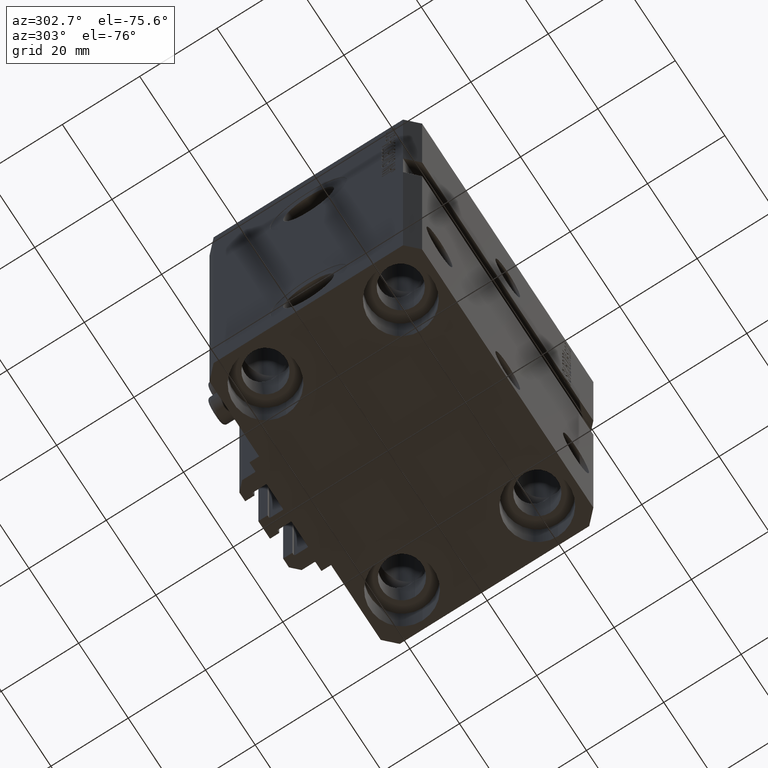
[diagram: clean part render]
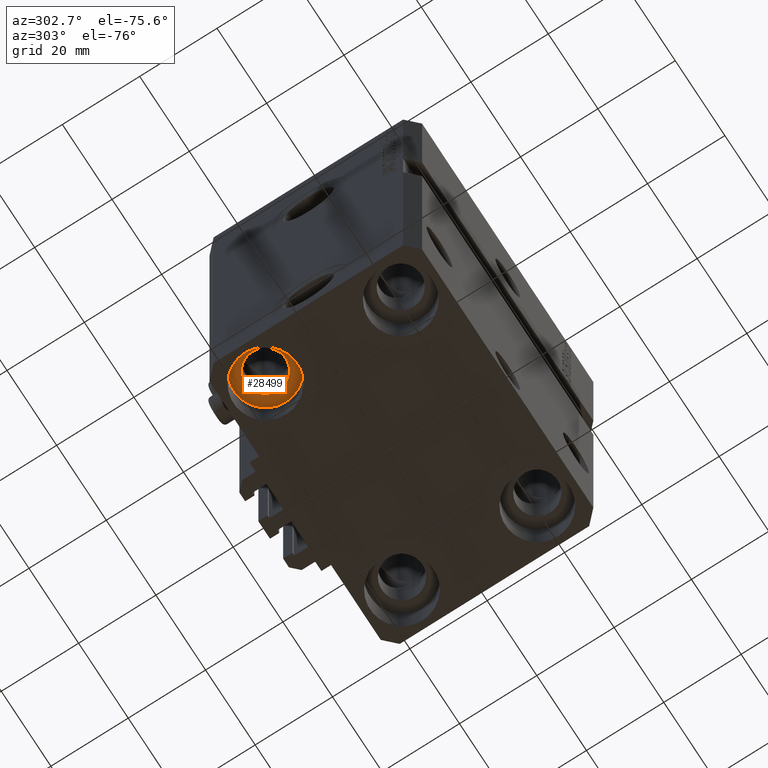
[diagram: same view with one face highlighted and labeled with its STEP entity id]
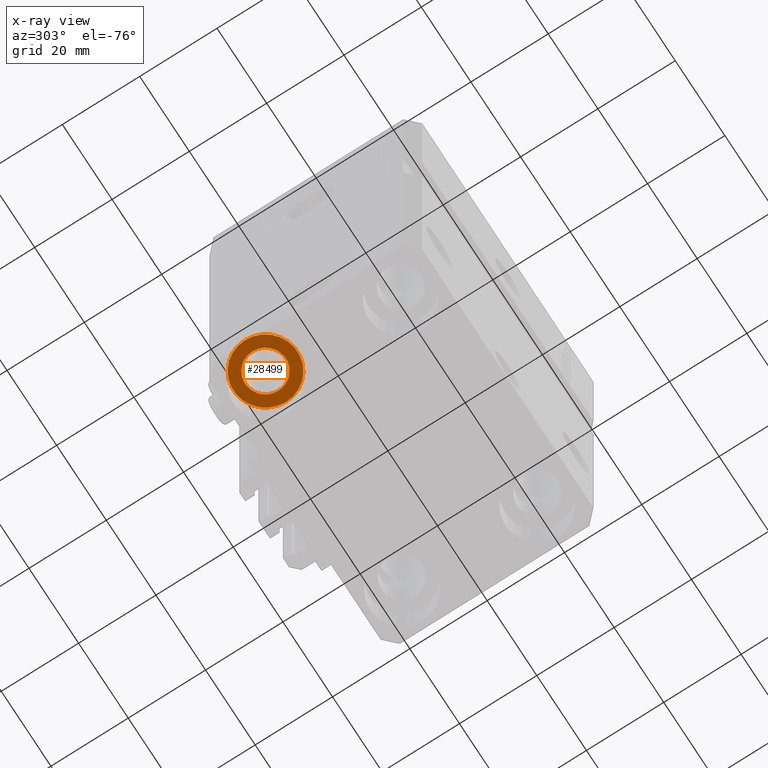
[diagram: x-ray of the same camera — body ghosted, the highlighted face saturated]
A machine part, auxiliary view. The second image highlights one B-rep face of the part: STEP entity #28499.
The next image is the same camera in x-ray: the body ghosted, the highlighted face saturated — about 0% of this face is hidden behind the body in this view.
In plain terms, the highlighted planar face has unit normal (0, 0, -1).
Its self-contained STEP definition (entity closure, byte-faithful):
#239 = CARTESIAN_POINT ( 'NONE',  ( -27.50000000000000355, 17.50000000000000000, -99.00000000000000000 ) ) ;
#1449 = DIRECTION ( 'NONE',  ( -1.000000000000000000, 0.000000000000000000, 0.000000000000000000 ) ) ;
#2641 = DIRECTION ( 'NONE',  ( 1.000000000000000000, 0.000000000000000000, 0.000000000000000000 ) ) ;
#3113 = DIRECTION ( 'NONE',  ( -0.000000000000000000, -0.000000000000000000, 1.000000000000000000 ) ) ;
#4422 = DIRECTION ( 'NONE',  ( 0.000000000000000000, 0.000000000000000000, -1.000000000000000000 ) ) ;
#5844 = CIRCLE ( 'NONE', #36399, 8.250000000000000000 ) ;
#6969 = PLANE ( 'NONE',  #9838 ) ;
#9838 = AXIS2_PLACEMENT_3D ( 'NONE', #239, #43604, #28309 ) ;
#11307 = VERTEX_POINT ( 'NONE', #25142 ) ;
#12798 = CARTESIAN_POINT ( 'NONE',  ( -27.50000000000000355, 17.50000000000000000, -99.00000000000000000 ) ) ;
#14639 = FACE_BOUND ( 'NONE', #47291, .T. ) ;
#15200 = AXIS2_PLACEMENT_3D ( 'NONE', #12798, #38406, #34823 ) ;
#18474 = FACE_OUTER_BOUND ( 'NONE', #36495, .T. ) ;
#18566 = CARTESIAN_POINT ( 'NONE',  ( -22.25000000000000355, 17.50000000000000000, -99.00000000000000000 ) ) ;
#18955 = CARTESIAN_POINT ( 'NONE',  ( -27.50000000000000355, 17.50000000000000000, -99.00000000000000000 ) ) ;
#19572 = AXIS2_PLACEMENT_3D ( 'NONE', #18955, #33551, #1449 ) ;
#20932 = ORIENTED_EDGE ( 'NONE', *, *, #41347, .F. ) ;
#21698 = DIRECTION ( 'NONE',  ( -1.000000000000000000, 0.000000000000000000, 0.000000000000000000 ) ) ;
#21704 = CARTESIAN_POINT ( 'NONE',  ( -19.25000000000000355, 17.50000000000000000, -99.00000000000000000 ) ) ;
#24210 = CARTESIAN_POINT ( 'NONE',  ( -27.50000000000000355, 17.50000000000000000, -99.00000000000000000 ) ) ;
#25142 = CARTESIAN_POINT ( 'NONE',  ( -32.75000000000000000, 17.50000000000000000, -99.00000000000000000 ) ) ;
#26103 = VERTEX_POINT ( 'NONE', #18566 ) ;
#27744 = VERTEX_POINT ( 'NONE', #34226 ) ;
#28176 = EDGE_CURVE ( 'NONE', #27744, #40320, #46529, .T. ) ;
#28309 = DIRECTION ( 'NONE',  ( 1.000000000000000000, 0.000000000000000000, 0.000000000000000000 ) ) ;
#28499 = ADVANCED_FACE ( 'NONE', ( #14639, #18474 ), #6969, .T. ) ;
#30942 = AXIS2_PLACEMENT_3D ( 'NONE', #40816, #4422, #21698 ) ;
#31814 = CIRCLE ( 'NONE', #19572, 5.249999999999997335 ) ;
#32147 = ORIENTED_EDGE ( 'NONE', *, *, #28176, .F. ) ;
#33551 = DIRECTION ( 'NONE',  ( 0.000000000000000000, 0.000000000000000000, -1.000000000000000000 ) ) ;
#34226 = CARTESIAN_POINT ( 'NONE',  ( -35.75000000000000711, 17.50000000000000000, -99.00000000000000000 ) ) ;
#34823 = DIRECTION ( 'NONE',  ( 1.000000000000000000, 0.000000000000000000, 0.000000000000000000 ) ) ;
#36399 = AXIS2_PLACEMENT_3D ( 'NONE', #24210, #3113, #2641 ) ;
#36495 = EDGE_LOOP ( 'NONE', ( #32147, #41986 ) ) ;
#38406 = DIRECTION ( 'NONE',  ( -0.000000000000000000, -0.000000000000000000, 1.000000000000000000 ) ) ;
#38562 = CIRCLE ( 'NONE', #30942, 5.249999999999997335 ) ;
#40320 = VERTEX_POINT ( 'NONE', #21704 ) ;
#40816 = CARTESIAN_POINT ( 'NONE',  ( -27.50000000000000355, 17.50000000000000000, -99.00000000000000000 ) ) ;
#41347 = EDGE_CURVE ( 'NONE', #26103, #11307, #38562, .T. ) ;
#41986 = ORIENTED_EDGE ( 'NONE', *, *, #45446, .F. ) ;
#42913 = ORIENTED_EDGE ( 'NONE', *, *, #44474, .F. ) ;
#43604 = DIRECTION ( 'NONE',  ( 0.000000000000000000, 0.000000000000000000, -1.000000000000000000 ) ) ;
#44474 = EDGE_CURVE ( 'NONE', #11307, #26103, #31814, .T. ) ;
#45446 = EDGE_CURVE ( 'NONE', #40320, #27744, #5844, .T. ) ;
#46529 = CIRCLE ( 'NONE', #15200, 8.250000000000000000 ) ;
#47291 = EDGE_LOOP ( 'NONE', ( #20932, #42913 ) ) ;